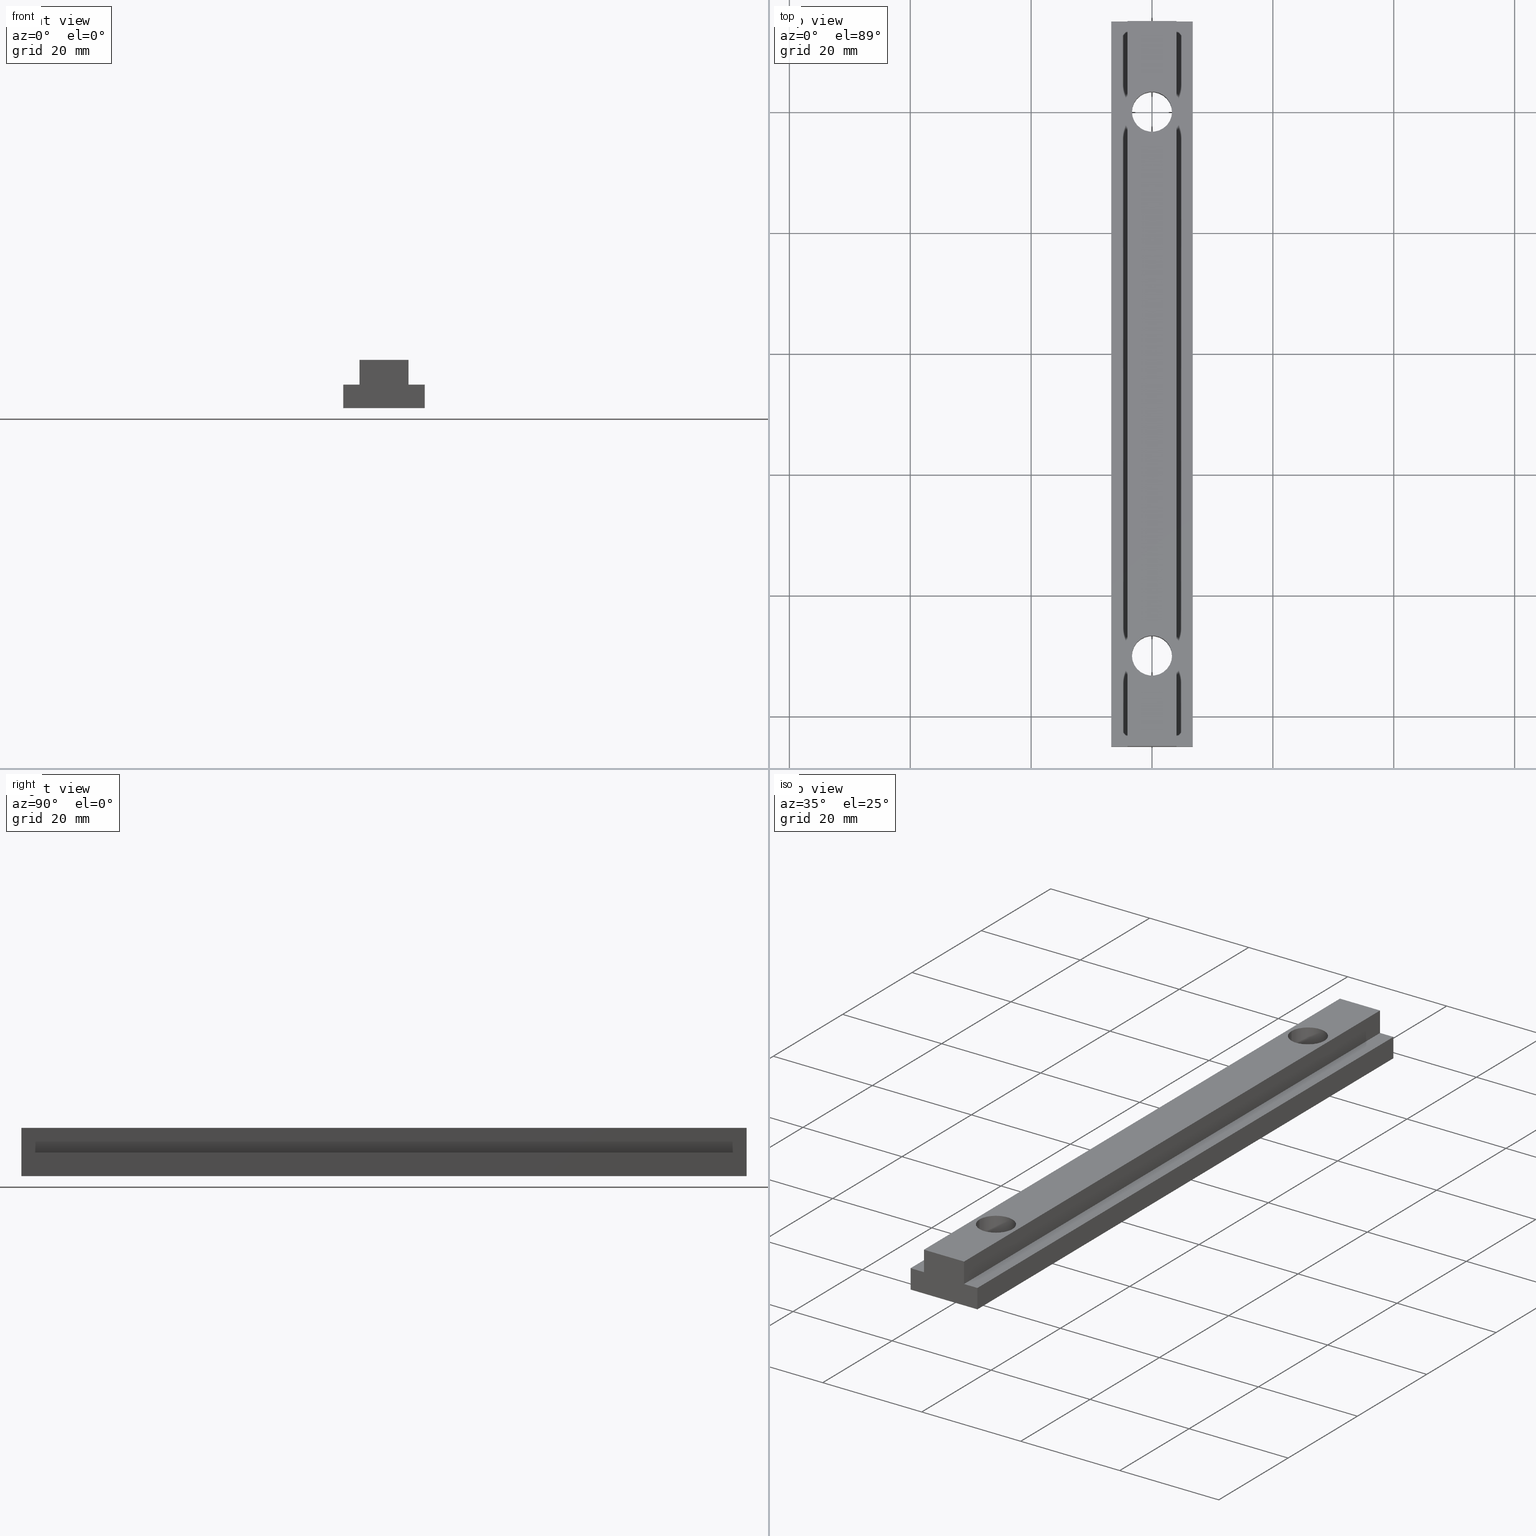
[diagram: canonical four-view strip — front | top / right | iso, engineering-drawing reading convention]
A machine part, canonical four-view strip (front | top / right | iso — engineering-drawing reading convention). The complete STEP part file that produces these views, byte-faithful:
ISO-10303-21;
HEADER;
/* Generated by software containing ST-Developer
 * from STEP Tools, Inc. (www.steptools.com) 
 */

FILE_DESCRIPTION(
/* description */ ('GIUNZ. LINEARE X PROF. SERIE 45 L=120MM'),
/* implementation_level */ '2;1');

FILE_NAME(
/* name */ 
'Q:\\Catalogo\\2_Accessori Dierre\\Per Download Web e catalogo cartace
o\\CATALOGO ELEMENTI ASSEMBLAGGIO\\PAGINA 22\\CGIPR0000077.stp',
/* time_stamp */ '2018-08-30T16:54:58+02:00',
/* author */ ('fzagni'),
/* organization */ (''),
/* preprocessor_version */ 'ST-DEVELOPER v16.1',
/* originating_system */ 'Autodesk Inventor 2016',
/* authorisation */ '');

FILE_SCHEMA (('AUTOMOTIVE_DESIGN { 1 0 10303 214 3 1 1 }'));
ENDSEC;

DATA;
#10=MECHANICAL_DESIGN_GEOMETRIC_PRESENTATION_REPRESENTATION('',(#13),#371);
#11=SHAPE_REPRESENTATION_RELATIONSHIP('SRR','None',#380,#12);
#12=ADVANCED_BREP_SHAPE_REPRESENTATION('',(#14),#370);
#13=STYLED_ITEM('',(#389),#14);
#14=MANIFOLD_SOLID_BREP('None',#231);
#15=LINE('',#321,#39);
#16=LINE('',#323,#40);
#17=LINE('',#325,#41);
#18=LINE('',#326,#42);
#19=LINE('',#329,#43);
#20=LINE('',#331,#44);
#21=LINE('',#332,#45);
#22=LINE('',#335,#46);
#23=LINE('',#337,#47);
#24=LINE('',#338,#48);
#25=LINE('',#341,#49);
#26=LINE('',#343,#50);
#27=LINE('',#344,#51);
#28=LINE('',#347,#52);
#29=LINE('',#349,#53);
#30=LINE('',#350,#54);
#31=LINE('',#353,#55);
#32=LINE('',#355,#56);
#33=LINE('',#356,#57);
#34=LINE('',#360,#58);
#35=LINE('',#361,#59);
#36=LINE('',#362,#60);
#37=LINE('',#364,#61);
#38=LINE('',#365,#62);
#39=VECTOR('',#265,2.6999999999889);
#40=VECTOR('',#266,120.);
#41=VECTOR('',#267,2.6999999999889);
#42=VECTOR('',#268,120.);
#43=VECTOR('',#271,3.89999999998463);
#44=VECTOR('',#272,120.);
#45=VECTOR('',#273,3.89999999998463);
#46=VECTOR('',#276,13.4999999999459);
#47=VECTOR('',#277,120.);
#48=VECTOR('',#278,13.4999999999459);
#49=VECTOR('',#281,3.89999999998463);
#50=VECTOR('',#282,120.);
#51=VECTOR('',#283,3.89999999998463);
#52=VECTOR('',#286,2.69999999998936);
#53=VECTOR('',#287,120.);
#54=VECTOR('',#288,2.69999999998936);
#55=VECTOR('',#291,4.09999999998354);
#56=VECTOR('',#292,120.);
#57=VECTOR('',#293,4.09999999998354);
#58=VECTOR('',#296,120.);
#59=VECTOR('',#297,8.09999999996762);
#60=VECTOR('',#298,8.09999999996762);
#61=VECTOR('',#301,4.09999999998354);
#62=VECTOR('',#302,4.09999999998354);
#63=PLANE('',#239);
#64=PLANE('',#240);
#65=PLANE('',#241);
#66=PLANE('',#242);
#67=PLANE('',#243);
#68=PLANE('',#244);
#69=PLANE('',#245);
#70=PLANE('',#246);
#71=PLANE('',#247);
#72=PLANE('',#248);
#73=FACE_BOUND('',#92,.T.);
#74=FACE_BOUND('',#94,.T.);
#75=FACE_BOUND('',#98,.T.);
#76=FACE_BOUND('',#99,.T.);
#77=FACE_BOUND('',#104,.T.);
#78=FACE_BOUND('',#105,.T.);
#79=FACE_OUTER_BOUND('',#91,.T.);
#80=FACE_OUTER_BOUND('',#93,.T.);
#81=FACE_OUTER_BOUND('',#95,.T.);
#82=FACE_OUTER_BOUND('',#96,.T.);
#83=FACE_OUTER_BOUND('',#97,.T.);
#84=FACE_OUTER_BOUND('',#100,.T.);
#85=FACE_OUTER_BOUND('',#101,.T.);
#86=FACE_OUTER_BOUND('',#102,.T.);
#87=FACE_OUTER_BOUND('',#103,.T.);
#88=FACE_OUTER_BOUND('',#106,.T.);
#89=FACE_OUTER_BOUND('',#107,.T.);
#90=FACE_OUTER_BOUND('',#108,.T.);
#91=EDGE_LOOP('',(#161));
#92=EDGE_LOOP('',(#162));
#93=EDGE_LOOP('',(#163));
#94=EDGE_LOOP('',(#164));
#95=EDGE_LOOP('',(#165,#166,#167,#168));
#96=EDGE_LOOP('',(#169,#170,#171,#172));
#97=EDGE_LOOP('',(#173,#174,#175,#176));
#98=EDGE_LOOP('',(#177));
#99=EDGE_LOOP('',(#178));
#100=EDGE_LOOP('',(#179,#180,#181,#182));
#101=EDGE_LOOP('',(#183,#184,#185,#186));
#102=EDGE_LOOP('',(#187,#188,#189,#190));
#103=EDGE_LOOP('',(#191,#192,#193,#194));
#104=EDGE_LOOP('',(#195));
#105=EDGE_LOOP('',(#196));
#106=EDGE_LOOP('',(#197,#198,#199,#200));
#107=EDGE_LOOP('',(#201,#202,#203,#204,#205,#206,#207,#208));
#108=EDGE_LOOP('',(#209,#210,#211,#212,#213,#214,#215,#216));
#109=CIRCLE('',#234,3.3235);
#110=CIRCLE('',#235,3.3235);
#111=CIRCLE('',#237,3.3235);
#112=CIRCLE('',#238,3.3235);
#113=VERTEX_POINT('',#309);
#114=VERTEX_POINT('',#311);
#115=VERTEX_POINT('',#314);
#116=VERTEX_POINT('',#316);
#117=VERTEX_POINT('',#319);
#118=VERTEX_POINT('',#320);
#119=VERTEX_POINT('',#322);
#120=VERTEX_POINT('',#324);
#121=VERTEX_POINT('',#328);
#122=VERTEX_POINT('',#330);
#123=VERTEX_POINT('',#334);
#124=VERTEX_POINT('',#336);
#125=VERTEX_POINT('',#340);
#126=VERTEX_POINT('',#342);
#127=VERTEX_POINT('',#346);
#128=VERTEX_POINT('',#348);
#129=VERTEX_POINT('',#352);
#130=VERTEX_POINT('',#354);
#131=VERTEX_POINT('',#358);
#132=VERTEX_POINT('',#359);
#133=EDGE_CURVE('',#113,#113,#109,.T.);
#134=EDGE_CURVE('',#114,#114,#110,.T.);
#135=EDGE_CURVE('',#115,#115,#111,.T.);
#136=EDGE_CURVE('',#116,#116,#112,.T.);
#137=EDGE_CURVE('',#117,#118,#15,.T.);
#138=EDGE_CURVE('',#118,#119,#16,.T.);
#139=EDGE_CURVE('',#120,#119,#17,.T.);
#140=EDGE_CURVE('',#117,#120,#18,.T.);
#141=EDGE_CURVE('',#118,#121,#19,.T.);
#142=EDGE_CURVE('',#121,#122,#20,.T.);
#143=EDGE_CURVE('',#119,#122,#21,.T.);
#144=EDGE_CURVE('',#121,#123,#22,.T.);
#145=EDGE_CURVE('',#123,#124,#23,.T.);
#146=EDGE_CURVE('',#122,#124,#24,.T.);
#147=EDGE_CURVE('',#123,#125,#25,.T.);
#148=EDGE_CURVE('',#125,#126,#26,.T.);
#149=EDGE_CURVE('',#124,#126,#27,.T.);
#150=EDGE_CURVE('',#125,#127,#28,.T.);
#151=EDGE_CURVE('',#127,#128,#29,.T.);
#152=EDGE_CURVE('',#126,#128,#30,.T.);
#153=EDGE_CURVE('',#127,#129,#31,.T.);
#154=EDGE_CURVE('',#129,#130,#32,.T.);
#155=EDGE_CURVE('',#128,#130,#33,.T.);
#156=EDGE_CURVE('',#131,#132,#34,.T.);
#157=EDGE_CURVE('',#130,#132,#35,.T.);
#158=EDGE_CURVE('',#129,#131,#36,.T.);
#159=EDGE_CURVE('',#132,#120,#37,.T.);
#160=EDGE_CURVE('',#131,#117,#38,.T.);
#161=ORIENTED_EDGE('',*,*,#133,.F.);
#162=ORIENTED_EDGE('',*,*,#134,.F.);
#163=ORIENTED_EDGE('',*,*,#135,.F.);
#164=ORIENTED_EDGE('',*,*,#136,.F.);
#165=ORIENTED_EDGE('',*,*,#137,.T.);
#166=ORIENTED_EDGE('',*,*,#138,.T.);
#167=ORIENTED_EDGE('',*,*,#139,.F.);
#168=ORIENTED_EDGE('',*,*,#140,.F.);
#169=ORIENTED_EDGE('',*,*,#141,.T.);
#170=ORIENTED_EDGE('',*,*,#142,.T.);
#171=ORIENTED_EDGE('',*,*,#143,.F.);
#172=ORIENTED_EDGE('',*,*,#138,.F.);
#173=ORIENTED_EDGE('',*,*,#144,.T.);
#174=ORIENTED_EDGE('',*,*,#145,.T.);
#175=ORIENTED_EDGE('',*,*,#146,.F.);
#176=ORIENTED_EDGE('',*,*,#142,.F.);
#177=ORIENTED_EDGE('',*,*,#134,.T.);
#178=ORIENTED_EDGE('',*,*,#136,.T.);
#179=ORIENTED_EDGE('',*,*,#147,.T.);
#180=ORIENTED_EDGE('',*,*,#148,.T.);
#181=ORIENTED_EDGE('',*,*,#149,.F.);
#182=ORIENTED_EDGE('',*,*,#145,.F.);
#183=ORIENTED_EDGE('',*,*,#150,.T.);
#184=ORIENTED_EDGE('',*,*,#151,.T.);
#185=ORIENTED_EDGE('',*,*,#152,.F.);
#186=ORIENTED_EDGE('',*,*,#148,.F.);
#187=ORIENTED_EDGE('',*,*,#151,.F.);
#188=ORIENTED_EDGE('',*,*,#153,.T.);
#189=ORIENTED_EDGE('',*,*,#154,.T.);
#190=ORIENTED_EDGE('',*,*,#155,.F.);
#191=ORIENTED_EDGE('',*,*,#156,.T.);
#192=ORIENTED_EDGE('',*,*,#157,.F.);
#193=ORIENTED_EDGE('',*,*,#154,.F.);
#194=ORIENTED_EDGE('',*,*,#158,.T.);
#195=ORIENTED_EDGE('',*,*,#133,.T.);
#196=ORIENTED_EDGE('',*,*,#135,.T.);
#197=ORIENTED_EDGE('',*,*,#159,.F.);
#198=ORIENTED_EDGE('',*,*,#156,.F.);
#199=ORIENTED_EDGE('',*,*,#160,.T.);
#200=ORIENTED_EDGE('',*,*,#140,.T.);
#201=ORIENTED_EDGE('',*,*,#160,.F.);
#202=ORIENTED_EDGE('',*,*,#158,.F.);
#203=ORIENTED_EDGE('',*,*,#153,.F.);
#204=ORIENTED_EDGE('',*,*,#150,.F.);
#205=ORIENTED_EDGE('',*,*,#147,.F.);
#206=ORIENTED_EDGE('',*,*,#144,.F.);
#207=ORIENTED_EDGE('',*,*,#141,.F.);
#208=ORIENTED_EDGE('',*,*,#137,.F.);
#209=ORIENTED_EDGE('',*,*,#139,.T.);
#210=ORIENTED_EDGE('',*,*,#143,.T.);
#211=ORIENTED_EDGE('',*,*,#146,.T.);
#212=ORIENTED_EDGE('',*,*,#149,.T.);
#213=ORIENTED_EDGE('',*,*,#152,.T.);
#214=ORIENTED_EDGE('',*,*,#155,.T.);
#215=ORIENTED_EDGE('',*,*,#157,.T.);
#216=ORIENTED_EDGE('',*,*,#159,.T.);
#217=CYLINDRICAL_SURFACE('',#233,3.3235);
#218=CYLINDRICAL_SURFACE('',#236,3.3235);
#219=ADVANCED_FACE('',(#79,#73),#217,.F.);
#220=ADVANCED_FACE('',(#80,#74),#218,.F.);
#221=ADVANCED_FACE('',(#81),#63,.T.);
#222=ADVANCED_FACE('',(#82),#64,.T.);
#223=ADVANCED_FACE('',(#83,#75,#76),#65,.T.);
#224=ADVANCED_FACE('',(#84),#66,.T.);
#225=ADVANCED_FACE('',(#85),#67,.T.);
#226=ADVANCED_FACE('',(#86),#68,.T.);
#227=ADVANCED_FACE('',(#87,#77,#78),#69,.T.);
#228=ADVANCED_FACE('',(#88),#70,.T.);
#229=ADVANCED_FACE('',(#89),#71,.F.);
#230=ADVANCED_FACE('',(#90),#72,.T.);
#231=CLOSED_SHELL('',(#219,#220,#221,#222,#223,#224,#225,#226,#227,#228,
#229,#230));
#232=AXIS2_PLACEMENT_3D('placement',#307,#249,#250);
#233=AXIS2_PLACEMENT_3D('',#308,#251,#252);
#234=AXIS2_PLACEMENT_3D('',#310,#253,#254);
#235=AXIS2_PLACEMENT_3D('',#312,#255,#256);
#236=AXIS2_PLACEMENT_3D('',#313,#257,#258);
#237=AXIS2_PLACEMENT_3D('',#315,#259,#260);
#238=AXIS2_PLACEMENT_3D('',#317,#261,#262);
#239=AXIS2_PLACEMENT_3D('',#318,#263,#264);
#240=AXIS2_PLACEMENT_3D('',#327,#269,#270);
#241=AXIS2_PLACEMENT_3D('',#333,#274,#275);
#242=AXIS2_PLACEMENT_3D('',#339,#279,#280);
#243=AXIS2_PLACEMENT_3D('',#345,#284,#285);
#244=AXIS2_PLACEMENT_3D('',#351,#289,#290);
#245=AXIS2_PLACEMENT_3D('',#357,#294,#295);
#246=AXIS2_PLACEMENT_3D('',#363,#299,#300);
#247=AXIS2_PLACEMENT_3D('',#366,#303,#304);
#248=AXIS2_PLACEMENT_3D('',#367,#305,#306);
#249=DIRECTION('axis',(0.,0.,1.));
#250=DIRECTION('refdir',(1.,0.,0.));
#251=DIRECTION('center_axis',(0.,0.,-1.));
#252=DIRECTION('ref_axis',(-1.,0.,0.));
#253=DIRECTION('center_axis',(0.,0.,-1.));
#254=DIRECTION('ref_axis',(-1.,0.,0.));
#255=DIRECTION('center_axis',(0.,0.,1.));
#256=DIRECTION('ref_axis',(-1.,0.,0.));
#257=DIRECTION('center_axis',(0.,0.,-1.));
#258=DIRECTION('ref_axis',(-1.,0.,0.));
#259=DIRECTION('center_axis',(0.,0.,-1.));
#260=DIRECTION('ref_axis',(-1.,0.,0.));
#261=DIRECTION('center_axis',(0.,0.,1.));
#262=DIRECTION('ref_axis',(-1.,0.,0.));
#263=DIRECTION('center_axis',(0.,0.,1.));
#264=DIRECTION('ref_axis',(1.,0.,0.));
#265=DIRECTION('',(-1.,0.,0.));
#266=DIRECTION('',(0.,-1.,0.));
#267=DIRECTION('',(-1.,0.,0.));
#268=DIRECTION('',(0.,-1.,0.));
#269=DIRECTION('center_axis',(-1.,0.,0.));
#270=DIRECTION('ref_axis',(0.,0.,1.));
#271=DIRECTION('',(0.,0.,-1.));
#272=DIRECTION('',(0.,-1.,0.));
#273=DIRECTION('',(0.,0.,-1.));
#274=DIRECTION('center_axis',(0.,0.,-1.));
#275=DIRECTION('ref_axis',(-1.,0.,0.));
#276=DIRECTION('',(1.,0.,0.));
#277=DIRECTION('',(0.,-1.,0.));
#278=DIRECTION('',(1.,0.,0.));
#279=DIRECTION('center_axis',(1.,0.,0.));
#280=DIRECTION('ref_axis',(0.,0.,-1.));
#281=DIRECTION('',(0.,0.,1.));
#282=DIRECTION('',(0.,-1.,0.));
#283=DIRECTION('',(0.,0.,1.));
#284=DIRECTION('center_axis',(0.,0.,1.));
#285=DIRECTION('ref_axis',(1.,0.,0.));
#286=DIRECTION('',(-1.,0.,0.));
#287=DIRECTION('',(0.,-1.,0.));
#288=DIRECTION('',(-1.,0.,0.));
#289=DIRECTION('center_axis',(1.,0.,0.));
#290=DIRECTION('ref_axis',(0.,0.,-1.));
#291=DIRECTION('',(0.,0.,1.));
#292=DIRECTION('',(0.,-1.,0.));
#293=DIRECTION('',(0.,0.,1.));
#294=DIRECTION('center_axis',(0.,0.,1.));
#295=DIRECTION('ref_axis',(1.,0.,0.));
#296=DIRECTION('',(0.,-1.,0.));
#297=DIRECTION('',(-1.,0.,0.));
#298=DIRECTION('',(-1.,0.,0.));
#299=DIRECTION('center_axis',(-1.,0.,0.));
#300=DIRECTION('ref_axis',(0.,0.,1.));
#301=DIRECTION('',(0.,0.,-1.));
#302=DIRECTION('',(0.,0.,-1.));
#303=DIRECTION('center_axis',(0.,-1.,0.));
#304=DIRECTION('ref_axis',(0.,0.,-1.));
#305=DIRECTION('center_axis',(0.,-1.,0.));
#306=DIRECTION('ref_axis',(0.,0.,-1.));
#307=CARTESIAN_POINT('',(0.,0.,0.));
#308=CARTESIAN_POINT('Origin',(0.,0.,121.021692270427));
#309=CARTESIAN_POINT('',(3.3235,-4.07011363696623E-16,7.99999999996817));
#310=CARTESIAN_POINT('Origin',(0.,0.,7.99999999996817));
#311=CARTESIAN_POINT('',(-3.3235,0.,-8.881784E-16));
#312=CARTESIAN_POINT('Origin',(0.,0.,0.));
#313=CARTESIAN_POINT('Origin',(0.,-89.9999999996403,121.021692270427));
#314=CARTESIAN_POINT('',(3.3235,-89.9999999996403,7.99999999996817));
#315=CARTESIAN_POINT('Origin',(0.,-89.9999999996403,7.99999999996817));
#316=CARTESIAN_POINT('',(-3.3235,-89.9999999996403,-8.881784E-16));
#317=CARTESIAN_POINT('Origin',(0.,-89.9999999996403,0.));
#318=CARTESIAN_POINT('Origin',(-4.04999999998381,15.0000000004197,3.89999999998463));
#319=CARTESIAN_POINT('',(-4.04999999998381,15.0000000004197,3.89999999998463));
#320=CARTESIAN_POINT('',(-6.74999999997272,15.0000000004197,3.89999999998463));
#321=CARTESIAN_POINT('',(-4.04999999998381,15.0000000004197,3.89999999998463));
#322=CARTESIAN_POINT('',(-6.74999999997272,-104.99999999958,3.89999999998463));
#323=CARTESIAN_POINT('',(-6.74999999997272,15.0000000004197,3.89999999998463));
#324=CARTESIAN_POINT('',(-4.04999999998381,-104.99999999958,3.89999999998463));
#325=CARTESIAN_POINT('',(-4.04999999998381,-104.99999999958,3.89999999998463));
#326=CARTESIAN_POINT('',(-4.04999999998381,-91.9615045242668,3.89999999998463));
#327=CARTESIAN_POINT('Origin',(-6.74999999997272,15.0000000004197,3.89999999998463));
#328=CARTESIAN_POINT('',(-6.74999999997272,15.0000000004197,-8.881784E-16));
#329=CARTESIAN_POINT('',(-6.74999999997272,15.0000000004197,3.89999999998463));
#330=CARTESIAN_POINT('',(-6.74999999997272,-104.99999999958,-8.881784E-16));
#331=CARTESIAN_POINT('',(-6.74999999997272,15.0000000004197,-8.881784E-16));
#332=CARTESIAN_POINT('',(-6.74999999997272,-104.99999999958,3.89999999998463));
#333=CARTESIAN_POINT('Origin',(-6.74999999997272,15.0000000004197,-8.881784E-16));
#334=CARTESIAN_POINT('',(6.74999999997317,15.0000000004197,-8.881784E-16));
#335=CARTESIAN_POINT('',(-6.74999999997272,15.0000000004197,-8.881784E-16));
#336=CARTESIAN_POINT('',(6.74999999997317,-104.99999999958,-8.881784E-16));
#337=CARTESIAN_POINT('',(6.74999999997317,15.0000000004197,-8.881784E-16));
#338=CARTESIAN_POINT('',(-6.74999999997272,-104.99999999958,-8.881784E-16));
#339=CARTESIAN_POINT('Origin',(6.74999999997317,15.0000000004197,-8.881784E-16));
#340=CARTESIAN_POINT('',(6.74999999997317,15.0000000004197,3.89999999998463));
#341=CARTESIAN_POINT('',(6.74999999997317,15.0000000004197,-8.881784E-16));
#342=CARTESIAN_POINT('',(6.74999999997317,-104.99999999958,3.89999999998463));
#343=CARTESIAN_POINT('',(6.74999999997317,15.0000000004197,3.89999999998463));
#344=CARTESIAN_POINT('',(6.74999999997317,-104.99999999958,-8.881784E-16));
#345=CARTESIAN_POINT('Origin',(6.74999999997317,15.0000000004197,3.89999999998463));
#346=CARTESIAN_POINT('',(4.04999999998381,15.0000000004197,3.89999999998463));
#347=CARTESIAN_POINT('',(6.74999999997317,15.0000000004197,3.89999999998463));
#348=CARTESIAN_POINT('',(4.04999999998381,-104.99999999958,3.89999999998463));
#349=CARTESIAN_POINT('',(4.04999999998381,15.0000000004197,3.89999999998463));
#350=CARTESIAN_POINT('',(6.74999999997317,-104.99999999958,3.89999999998463));
#351=CARTESIAN_POINT('Origin',(4.04999999998381,15.0000000004197,3.89999999998463));
#352=CARTESIAN_POINT('',(4.04999999998381,15.0000000004197,7.99999999996817));
#353=CARTESIAN_POINT('',(4.04999999998381,15.0000000004197,3.89999999998463));
#354=CARTESIAN_POINT('',(4.04999999998381,-104.99999999958,7.99999999996817));
#355=CARTESIAN_POINT('',(4.04999999998381,-91.9615045242668,7.99999999996817));
#356=CARTESIAN_POINT('',(4.04999999998381,-104.99999999958,3.89999999998463));
#357=CARTESIAN_POINT('Origin',(4.04999999998381,15.0000000004197,7.99999999996817));
#358=CARTESIAN_POINT('',(-4.04999999998381,15.0000000004197,7.99999999996817));
#359=CARTESIAN_POINT('',(-4.04999999998381,-104.99999999958,7.99999999996817));
#360=CARTESIAN_POINT('',(-4.04999999998381,-91.9615045242668,7.99999999996817));
#361=CARTESIAN_POINT('',(4.04999999998381,-104.99999999958,7.99999999996817));
#362=CARTESIAN_POINT('',(4.04999999998381,15.0000000004197,7.99999999996817));
#363=CARTESIAN_POINT('Origin',(-4.04999999998381,15.0000000004197,7.99999999996817));
#364=CARTESIAN_POINT('',(-4.04999999998381,-104.99999999958,7.99999999996817));
#365=CARTESIAN_POINT('',(-4.04999999998381,15.0000000004197,7.99999999996817));
#366=CARTESIAN_POINT('Origin',(-8.10000473353739,15.0000000004197,-0.800004733558127));
#367=CARTESIAN_POINT('Origin',(-8.10000473353739,-104.99999999958,-0.800004733558127));
#368=UNCERTAINTY_MEASURE_WITH_UNIT(LENGTH_MEASURE(0.01),#372,
'DISTANCE_ACCURACY_VALUE',
'Maximum model space distance between geometric entities at asserted c
onnectivities');
#369=UNCERTAINTY_MEASURE_WITH_UNIT(LENGTH_MEASURE(1.E-6),#372,
'DISTANCE_ACCURACY_VALUE',
'Maximum model space distance between geometric entities at asserted c
onnectivities');
#370=(
GEOMETRIC_REPRESENTATION_CONTEXT(3)
GLOBAL_UNCERTAINTY_ASSIGNED_CONTEXT((#368))
GLOBAL_UNIT_ASSIGNED_CONTEXT((#372,#375,#373))
REPRESENTATION_CONTEXT('','3D')
);
#371=(
GEOMETRIC_REPRESENTATION_CONTEXT(3)
GLOBAL_UNCERTAINTY_ASSIGNED_CONTEXT((#369))
GLOBAL_UNIT_ASSIGNED_CONTEXT((#372,#375,#373))
REPRESENTATION_CONTEXT('','3D')
);
#372=(
LENGTH_UNIT()
NAMED_UNIT(*)
SI_UNIT(.MILLI.,.METRE.)
);
#373=(
NAMED_UNIT(*)
SI_UNIT($,.STERADIAN.)
SOLID_ANGLE_UNIT()
);
#374=DIMENSIONAL_EXPONENTS(0.,0.,0.,0.,0.,0.,0.);
#375=(
CONVERSION_BASED_UNIT('degree',#377)
NAMED_UNIT(#374)
PLANE_ANGLE_UNIT()
);
#376=(
NAMED_UNIT(*)
PLANE_ANGLE_UNIT()
SI_UNIT($,.RADIAN.)
);
#377=PLANE_ANGLE_MEASURE_WITH_UNIT(PLANE_ANGLE_MEASURE(0.01745329252),#376);
#378=SHAPE_DEFINITION_REPRESENTATION(#379,#380);
#379=PRODUCT_DEFINITION_SHAPE('',$,#382);
#380=SHAPE_REPRESENTATION('',(#232),#370);
#381=PRODUCT_DEFINITION_CONTEXT('part definition',#386,'design');
#382=PRODUCT_DEFINITION('14.321.00','14.321.00',#383,#381);
#383=PRODUCT_DEFINITION_FORMATION('','A',#388);
#384=PRODUCT_RELATED_PRODUCT_CATEGORY('14.321.00','14.321.00',(#388));
#385=APPLICATION_PROTOCOL_DEFINITION('international standard',
'automotive_design',2009,#386);
#386=APPLICATION_CONTEXT(
'Core Data for Automotive Mechanical Design Process');
#387=PRODUCT_CONTEXT('part definition',#386,'mechanical');
#388=PRODUCT('14.321.00','14.321.00',$,(#387));
#389=PRESENTATION_STYLE_ASSIGNMENT((#390));
#390=SURFACE_STYLE_USAGE(.BOTH.,#391);
#391=SURFACE_SIDE_STYLE('',(#392));
#392=SURFACE_STYLE_FILL_AREA(#393);
#393=FILL_AREA_STYLE('',(#394));
#394=FILL_AREA_STYLE_COLOUR('',#395);
#395=COLOUR_RGB('',0.83921568627451,0.886274509803922,0.854901960784314);
ENDSEC;
END-ISO-10303-21;
